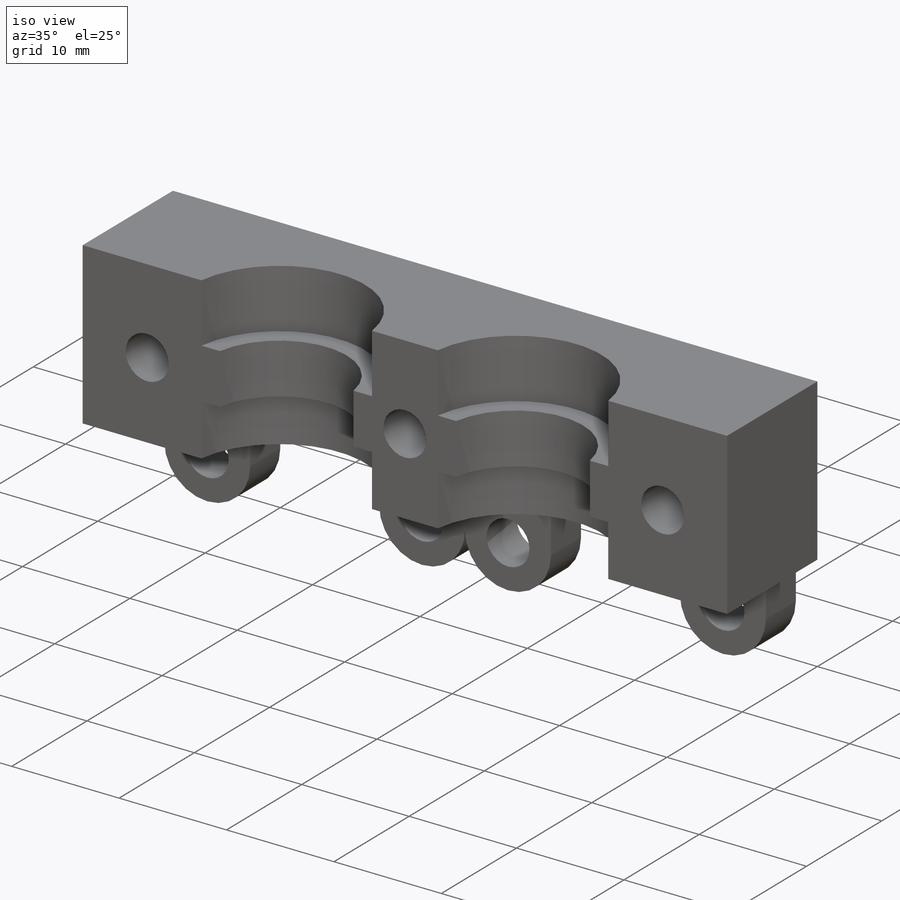
[diagram: iso view]
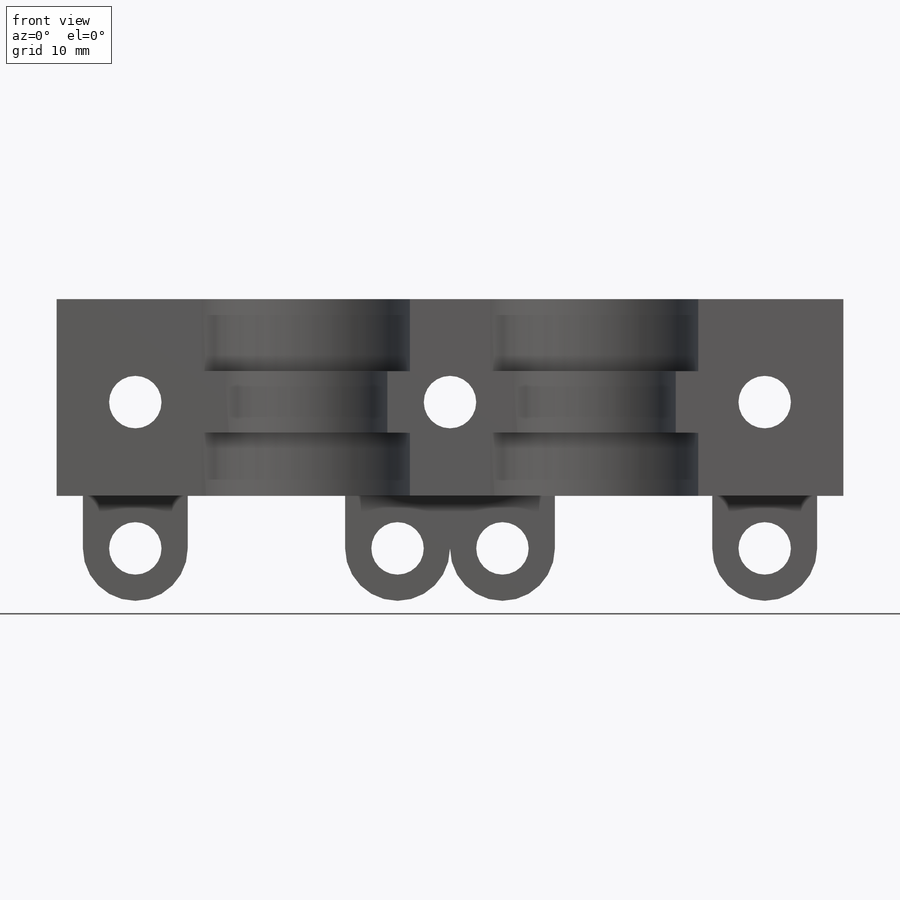
[diagram: front view]
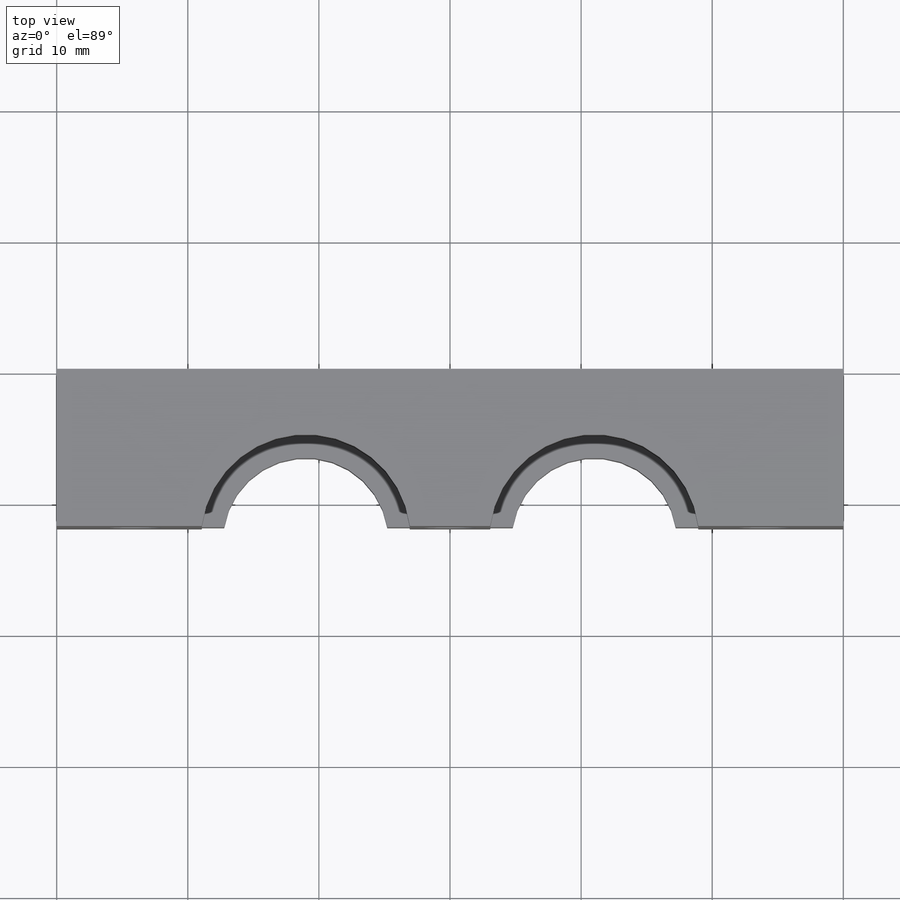
[diagram: top view]
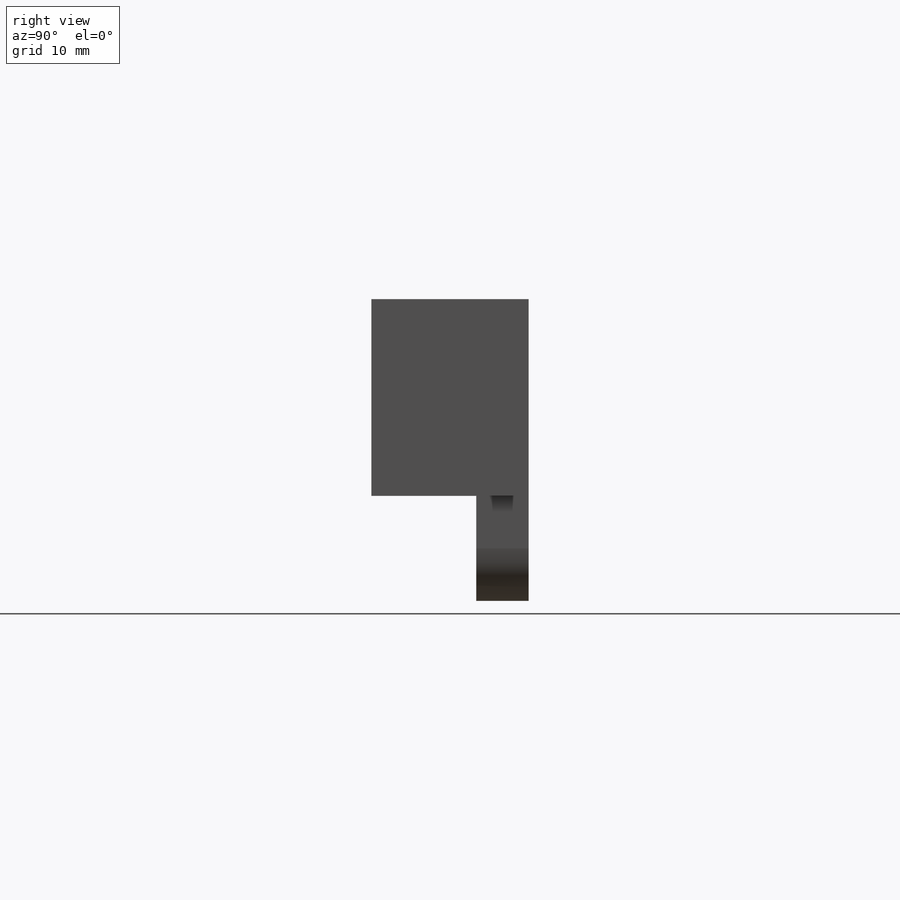
[diagram: right view]
SOLIDWORKS PART (.sldprt)
format: sldprt  version: not decoded by parser v0  size: 410,112 bytes
history: native  units: mm
features: sketch x15, cut_extrude x9, extrude x5, plane x4, fillet x3, material x1, mirror x1 (+9 scaffold rows collapsed)
feature tree (47):
  scaffold x9  (default folders/planes/origin — collapsed)
  material  "Materiale <non specificato>"
  plane  "Piano frontale"
  plane  "Piano superiore"
  plane  "Piano destro"
  sketch  "Schizzo1"  dims[D1=60.0mm D2=30.0mm]
  extrude  "Estrusione-Estrusione1"  Depth=5mm
  sketch  "Schizzo2"  dims[D1=7.0mm D2=15.0mm]
  extrude  "Estrusione-Estrusione2"  Depth=20mm
  sketch  "Schizzo3"  dims[D2=10.0mm D3=13.0mm D1=11.0mm]
  cut_extrude  "Taglio-Estrusione1"  [1 undecoded]
  fillet  "Raccordo1"  Radius=20mm
  sketch  "Schizzo4"  dims[D1=15.0mm]
  extrude  "Estrusione-Estrusione3"  Depth=10mm
  sketch  "Schizzo6"  dims[D1=16.0mm]
  cut_extrude  "Taglio-Estrusione2"  Depth=15mm
  plane  "Piano1"
  sketch  "Schizzo8"  dims[D1=5.5mm D2=4.7mm D3=4.7mm]
  extrude  "Estrusione-Estrusione4"  [1 undecoded]
  sketch  "Schizzo9"  dims[D1=~6.446843mm]
  cut_extrude  "Taglio-Estrusione3"  Depth=5mm
  sketch  "Schizzo10"  dims[c1.D1=4.0mm c1.D2=4.0mm c2.D1=12.0mm c2.D2=12.0mm]
  cut_extrude  "Taglio-Estrusione4"  [1 undecoded]
  sketch  "Schizzo11"
  cut_extrude  "Taglio-Estrusione5"  Depth=25mm
  sketch  "Schizzo14"
  cut_extrude  "Taglio-Estrusione7"  [1 undecoded]
  sketch  "Schizzo12"  dims[D8=~3.781799mm D1=56.0mm D2=2.75mm D3=6.75mm D4=4.0mm D5=4.0mm D6=20.0mm D7=20.0mm]
  extrude  "Estrusione-Estrusione5"  Depth=4mm
  sketch  "Schizzo17"
  cut_extrude  "Taglio-Estrusione9"  Depth=3mm
  sketch  "Schizzo18"  dims[D1=~3.560918mm]
  cut_extrude  "Taglio-Estrusione10"  [1 undecoded]
  sketch  "Schizzo19"
  sketch  "Schizzo20"  dims[D1=0.5mm]
  cut_extrude  "Taglio-Estrusione12"  [1 undecoded]
  mirror  "Specchia1"
  fillet  "Raccordo2"  Radius=5mm
  fillet  "Raccordo3"  Radius=10mm
decode coverage: 22 of 33 modeling features carry decoded parameters
note: ~ marks probable driven/reference dimensions
note: 6 parameter values undecoded
summary: no parameter record found for 6 features
note: suppression state not decoded; provenance and decode notes live in map.json
